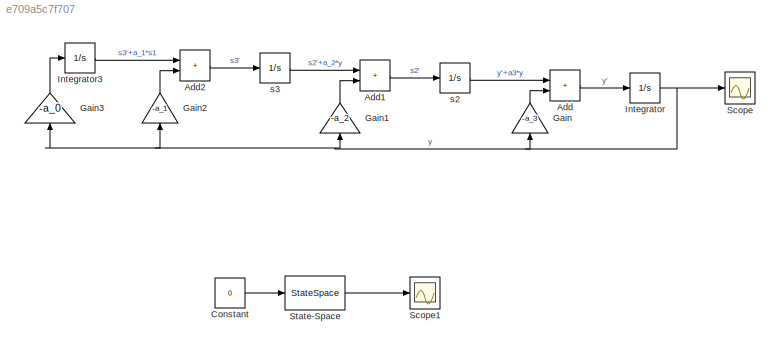
MODEL slx_e709a5c7f707
KIND model
CONFIG AbsTol = auto
CONFIG EnableMultiTasking = off
CONFIG FixedStep = 0.0001
CONFIG MaxStep = auto
CONFIG MinStep = auto
CONFIG RelTol = 1e-3
CONFIG SampleTimeConstraint = Unconstrained
CONFIG SolverName = FixedStepAuto
CONFIG StartTime = 0.0
CONFIG StopTime = 10
BLOCK [Sum] Add
  IconShape = rectangular
  Ports = [2, 1]
BLOCK [Sum] Add1
  IconShape = rectangular
  Ports = [2, 1]
BLOCK [Sum] Add2
  IconShape = rectangular
  Ports = [2, 1]
BLOCK [Constant] Constant
  Value = 0
BLOCK [Gain] Gain
  Gain = -a_3
  NameLocation = right
BLOCK [Gain] Gain1
  Gain = -a_2
  NameLocation = right
BLOCK [Gain] Gain2
  Gain = -a_1
  NameLocation = right
BLOCK [Gain] Gain3
  Gain = -a_0
  NameLocation = right
BLOCK [Integrator] Integrator
  InitialCondition = s1
  Ports = [1, 1]
BLOCK [Integrator] Integrator3
  InitialCondition = s4
  Ports = [1, 1]
BLOCK [Scope] Scope
  Floating = off
  NumInputPorts = 1
  Ports = [1]
  ScopeSpecificationString = Simulink.scopes.TimeScopeBlockCfg('CurrentConfiguration', extmgr.ConfigurationSet(extmgr.Configuration('Core','General UI',true),extmgr.Configuration('Core','Source UI',true),extmgr.Configuration('Sources','WiredSimulink',true),extmgr.Configuration('Visuals','Time Domain',true,'SerializedDisplays',{struct('MinYLimReal','-5.12121','MaxYLimReal','4.83245','YLabelReal','','MinYLimMag','0.00000','MaxY...<+1369ch>
BLOCK [Scope] Scope1
  Floating = off
  NumInputPorts = 1
  Ports = [1]
  ScopeSpecificationString = Simulink.scopes.TimeScopeBlockCfg('CurrentConfiguration', extmgr.ConfigurationSet(extmgr.Configuration('Core','General UI',true),extmgr.Configuration('Core','Source UI',true),extmgr.Configuration('Sources','WiredSimulink',true,'DataLoggingVariableName','ScopeData1'),extmgr.Configuration('Visuals','Time Domain',true),extmgr.Configuration('Tools','Plot Navigation',true),extmgr.Configuration('Tools',...<+40ch>
BLOCK [StateSpace] State-Space
  A = A
  B = [0;0;0;0]
  C = [1 0 1 0]
  D = 0
  InitialCondition = [1;0;1;0]
  Ports = [1, 1]
BLOCK [Integrator] s2
  InitialCondition = s2
  Ports = [1, 1]
BLOCK [Integrator] s3
  InitialCondition = s3
  Ports = [1, 1]
LINE Add1:1 -> s2:1
LINE Add2:1 -> s3:1
LINE Add:1 -> Integrator:1
LINE Constant:1 -> State-Space:1
LINE Gain1:1 -> Add1:2
LINE Gain2:1 -> Add2:2
LINE Gain3:1 -> Integrator3:1
LINE Gain:1 -> Add:2
LINE Integrator3:1 -> Add2:1
NET Integrator:1 -> Gain1:1, Gain2:1, Gain3:1, Gain:1, Scope:1
LINE State-Space:1 -> Scope1:1
LINE s2:1 -> Add:1
LINE s3:1 -> Add1:1
note: NET lines group one-source signal fan-out (src -> all destinations, sorted); 1:1 wires keep LINE
